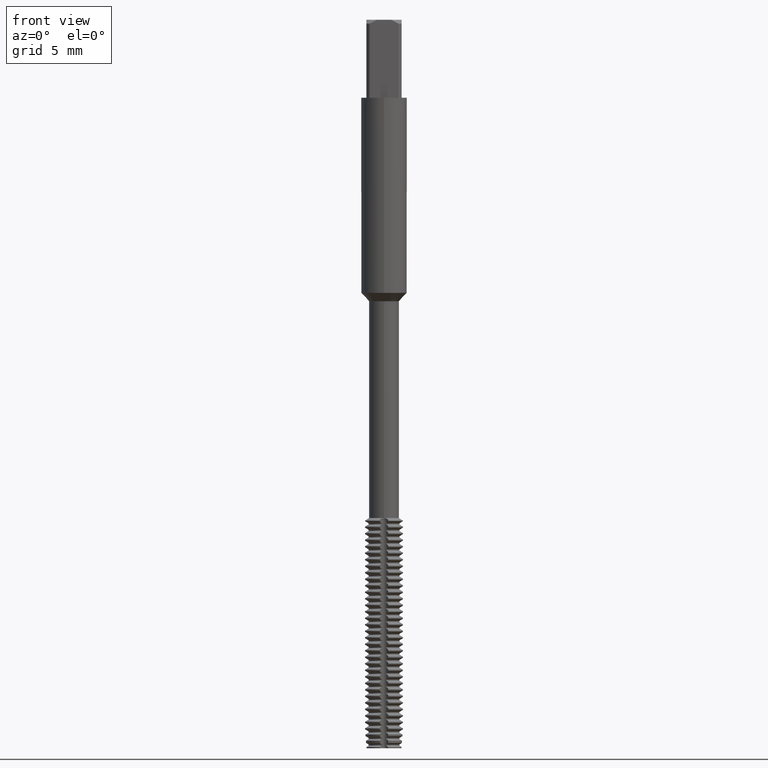
[diagram: clean part render]
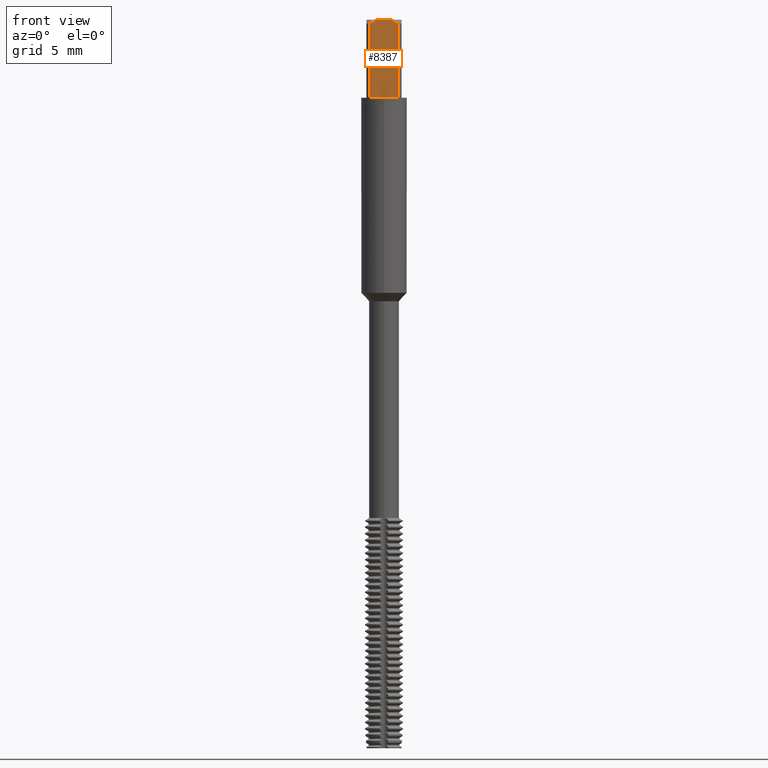
[diagram: same view with one face highlighted and labeled with its STEP entity id]
A machine part, front view. The second image highlights one B-rep face of the part: STEP entity #8387.
In plain terms, the highlighted planar face has unit normal (0, -1, 0).
Its self-contained STEP definition (entity closure, byte-faithful):
#7185=VERTEX_POINT('',#18170);
#7625=VERTEX_POINT('',#18648);
#7973=EDGE_CURVE('',#8657,#7185,#19023,.T.);
#8149=EDGE_CURVE('',#9123,#7625,#19212,.T.);
#8387=ADVANCED_FACE('',(#19472),#19473,.T.);
#8493=EDGE_CURVE('',#7185,#13253,#19590,.T.);
#8657=VERTEX_POINT('',#19777);
#9123=VERTEX_POINT('',#20281);
#12005=EDGE_CURVE('',#7625,#8657,#23397,.T.);
#13253=VERTEX_POINT('',#24753);
#13503=EDGE_CURVE('',#13253,#14171,#25022,.T.);
#14171=VERTEX_POINT('',#25749);
#14269=EDGE_CURVE('',#14171,#9123,#25857,.T.);
#18170=CARTESIAN_POINT('',(0.529150262212918,-1.35,0.0));
#18648=CARTESIAN_POINT('',(-1.113552872566,-1.35,-0.300000000000001));
#19023=LINE('',#33331,#33332);
#19212=LINE('',#33711,#33712);
#19472=FACE_OUTER_BOUND('',#34157,.T.);
#19473=PLANE('',#34158);
#19590=(B_SPLINE_CURVE(2,(#34395,#34396,#34397),.UNSPECIFIED.,.F.,.F.)B_SPLINE_CURVE_WITH_KNOTS((3,3),(0.0,0.657857615083891),.UNSPECIFIED.)RATIONAL_B_SPLINE_CURVE((1.0,1.01710517501156,1.0))BOUNDED_CURVE()REPRESENTATION_ITEM('')GEOMETRIC_REPRESENTATION_ITEM()CURVE());
#19777=CARTESIAN_POINT('',(-0.529150262212918,-1.35,0.0));
#20281=CARTESIAN_POINT('',(-1.113552872566,-1.35,-6.0));
#23397=(B_SPLINE_CURVE(2,(#41423,#41424,#41425),.UNSPECIFIED.,.F.,.F.)B_SPLINE_CURVE_WITH_KNOTS((3,3),(0.0,0.657857615083891),.UNSPECIFIED.)RATIONAL_B_SPLINE_CURVE((1.0,1.01710517501156,1.0))BOUNDED_CURVE()REPRESENTATION_ITEM('')GEOMETRIC_REPRESENTATION_ITEM()CURVE());
#24753=CARTESIAN_POINT('',(1.113552872566,-1.35,-0.300000000000001));
#25022=LINE('',#44403,#44404);
#25749=CARTESIAN_POINT('',(1.113552872566,-1.35,-6.0));
#25857=LINE('',#46048,#46049);
#33331=CARTESIAN_POINT('',(0.0,-1.35,0.0));
#33332=VECTOR('',#53036,1.0);
#33711=CARTESIAN_POINT('',(-1.113552872566,-1.35,-3.15));
#33712=VECTOR('',#53217,1.0);
#34157=EDGE_LOOP('',(#53486,#53487,#53488,#53489,#53490,#53491));
#34158=AXIS2_PLACEMENT_3D('',#53492,#53493,#53494);
#34395=CARTESIAN_POINT('',(0.529150262212924,-1.35,-2.77555756156289E-017));
#34396=CARTESIAN_POINT('',(0.793957695029165,-1.35,-0.0966364982832037));
#34397=CARTESIAN_POINT('',(1.11355287256601,-1.35,-0.300000000000001));
#41423=CARTESIAN_POINT('',(-1.11355287256601,-1.35,-0.300000000000001));
#41424=CARTESIAN_POINT('',(-0.793957695029165,-1.35,-0.0966364982832037));
#41425=CARTESIAN_POINT('',(-0.529150262212924,-1.35,-2.77555756156289E-017));
#44403=CARTESIAN_POINT('',(1.113552872566,-1.35,-3.15));
#44404=VECTOR('',#59161,1.0);
#46048=CARTESIAN_POINT('',(0.0,-1.35,-6.0));
#46049=VECTOR('',#59991,1.0);
#53036=DIRECTION('',(1.0,0.0,0.0));
#53217=DIRECTION('',(-0.0,-0.0,1.0));
#53486=ORIENTED_EDGE('',*,*,#13503,.F.);
#53487=ORIENTED_EDGE('',*,*,#8493,.F.);
#53488=ORIENTED_EDGE('',*,*,#7973,.F.);
#53489=ORIENTED_EDGE('',*,*,#12005,.F.);
#53490=ORIENTED_EDGE('',*,*,#8149,.F.);
#53491=ORIENTED_EDGE('',*,*,#14269,.F.);
#53492=CARTESIAN_POINT('',(0.0,-1.35,-2.5));
#53493=DIRECTION('',(0.0,-1.0,0.0));
#53494=DIRECTION('',(0.0,0.0,-1.0));
#59161=DIRECTION('',(0.0,0.0,-1.0));
#59991=DIRECTION('',(-1.0,0.0,0.0));